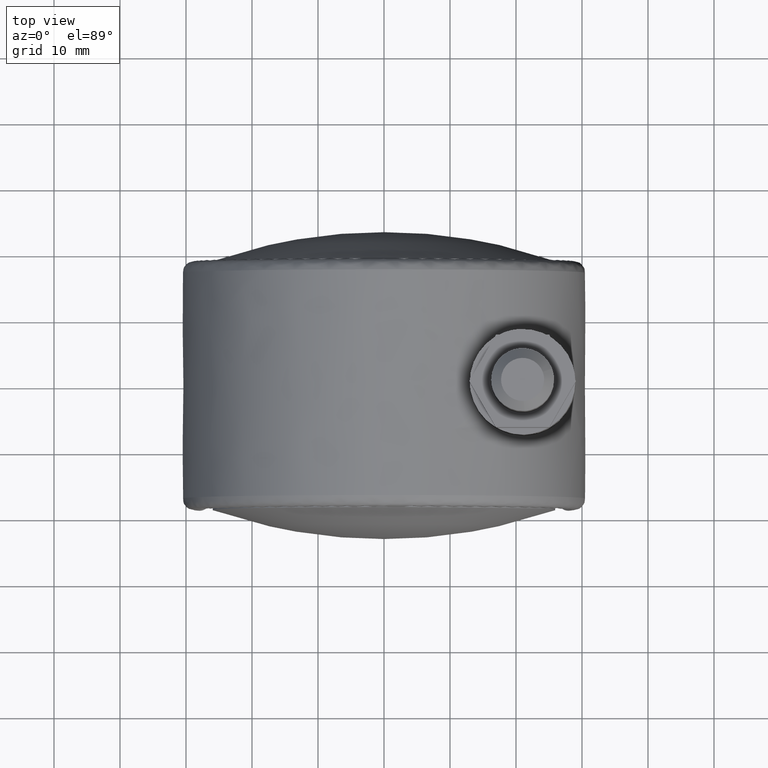
[diagram: clean part render]
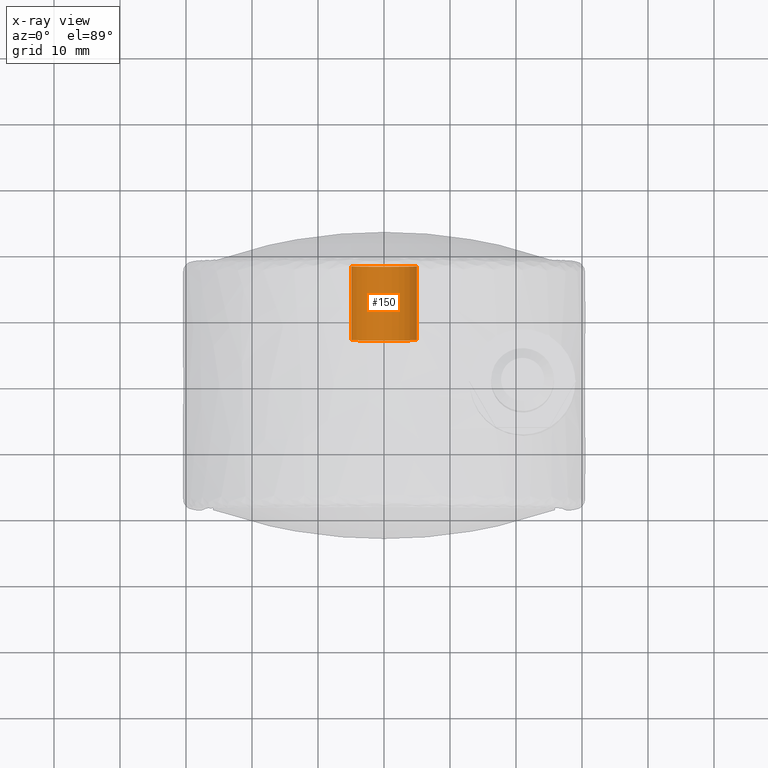
[diagram: x-ray — body ghosted, one internal face saturated and labeled with its STEP entity id]
A machine part, top view, then the same camera in x-ray: the body is ghosted and one INTERNAL B-rep face — a face not visible from any outside direction — is saturated and labeled: STEP entity #150.
In plain terms, the highlighted face is a freeform B-spline surface patch.
Its self-contained STEP definition (entity closure, byte-faithful):
#44=CARTESIAN_POINT('',(4.956289262811225,-18.360452718385545,0.663854404972944));
#45=CARTESIAN_POINT('',(4.960680795249676,-18.360452718385545,0.626908907258677));
#46=CARTESIAN_POINT('',(4.981938077243028,-18.360452718385545,0.448073643189888));
#47=CARTESIAN_POINT('',(4.990673992109334,-18.360452718385549,0.305242697674285));
#48=CARTESIAN_POINT('',(5.295916689783620,-18.360452718385545,-4.685431294435048));
#49=CARTESIAN_POINT('',(0.305242697674285,-18.360452718385549,-4.990673992109334));
#50=CARTESIAN_POINT('',(-4.685431294435048,-18.360452718385545,-5.295916689783620));
#51=CARTESIAN_POINT('',(-4.992869270455739,-18.360452718385545,-0.269350213980748));
#52=CARTESIAN_POINT('',(-4.995051508237991,-18.360452718385559,-0.233670941626498));
#53=CARTESIAN_POINT('',(4.956289262811225,-6.613488682040361,0.663854404972944));
#54=CARTESIAN_POINT('',(4.960680795249676,-6.613488682040362,0.626908907258677));
#55=CARTESIAN_POINT('',(4.981938077243028,-6.613488682040360,0.448073643189888));
#56=CARTESIAN_POINT('',(4.990673992109334,-6.613488682040360,0.305242697674285));
#57=CARTESIAN_POINT('',(5.295916689783620,-6.613488682040360,-4.685431294435048));
#58=CARTESIAN_POINT('',(0.305242697674285,-6.613488682040360,-4.990673992109334));
#59=CARTESIAN_POINT('',(-4.685431294435048,-6.613488682040360,-5.295916689783620));
#60=CARTESIAN_POINT('',(-4.992869270455739,-6.613488682040359,-0.269350213980748));
#61=CARTESIAN_POINT('',(-4.995051508237991,-6.613488682040364,-0.233670941626498));
#69=(BOUNDED_SURFACE()B_SPLINE_SURFACE(2,1,((#44,#53),(#45,#54),(#46,#55),(#47,#56),(#48,#57),(#49,#58),(#50,#59),(#51,#60),(#52,#61)),.UNSPECIFIED.,.F.,.F.,.U.)B_SPLINE_SURFACE_WITH_KNOTS((3,1,2,2,1,3),(2,2),(0.0,0.084499617965476,0.415870467863952,8.700141715325852,16.984412962787751,17.068923197378911),(0.0,11.746964036345190),.UNSPECIFIED.)GEOMETRIC_REPRESENTATION_ITEM()RATIONAL_B_SPLINE_SURFACE(((0.972008777530989,0.972008777530989),(0.974757289163058,0.974757289163058),(0.988284271247462,0.988284271247462),(1.0,1.0),(0.707106781186548,0.707106781186548),(1.0,1.0),(0.707106781186548,0.707106781186548),(1.002987887997954,1.002987887997954),(1.005975775995907,1.005975775995907)))REPRESENTATION_ITEM('')SURFACE());
#70=CARTESIAN_POINT('',(4.965047631813540,-18.080929481351749,0.590171173324097));
#71=VERTEX_POINT('',#70);
#72=CARTESIAN_POINT('',(0.0,-18.080929481351749,-5.0));
#73=VERTEX_POINT('',#72);
#74=CARTESIAN_POINT('',(4.965047631813540,-18.080929481351742,0.590171173324097));
#75=CARTESIAN_POINT('',(5.0,-18.080929481351745,0.296120598300281));
#76=CARTESIAN_POINT('',(5.0,-18.080929481351749,0.0));
#77=CARTESIAN_POINT('',(5.000000000000001,-18.080929481351752,-5.000000000000001));
#78=CARTESIAN_POINT('',(0.0,-18.080929481351749,-5.0));
#86=(BOUNDED_CURVE()B_SPLINE_CURVE(2,(#74,#75,#76,#77,#78),.UNSPECIFIED.,.F.,.U.)B_SPLINE_CURVE_WITH_KNOTS((3,2,3),(0.229562473512900,0.250000000000000,0.500000000000000),.UNSPECIFIED.)CURVE()GEOMETRIC_REPRESENTATION_ITEM()RATIONAL_B_SPLINE_CURVE((0.956026754182508,0.976055948330433,1.0,0.707106781186548,1.0))REPRESENTATION_ITEM(''));
#87=EDGE_CURVE('',#71,#73,#86,.T.);
#88=ORIENTED_EDGE('',*,*,#87,.F.);
#89=CARTESIAN_POINT('',(4.965047631813540,-6.900000000000000,0.590171173324098));
#90=VERTEX_POINT('',#89);
#91=CARTESIAN_POINT('',(4.965047631813540,-18.080929481351749,0.590171173324097));
#92=CARTESIAN_POINT('',(4.965047631813540,-6.900000000000000,0.590171173324098));
#93=QUASI_UNIFORM_CURVE('',1,(#91,#92),.UNSPECIFIED.,.F.,.U.);
#94=EDGE_CURVE('',#71,#90,#93,.T.);
#95=ORIENTED_EDGE('',*,*,#94,.T.);
#96=CARTESIAN_POINT('',(0.0,-6.900000000000000,-5.0));
#97=VERTEX_POINT('',#96);
#98=CARTESIAN_POINT('',(4.965047631813540,-6.900000000000000,0.590171173324098));
#99=CARTESIAN_POINT('',(5.000000000000001,-6.900000000000000,0.296120598300282));
#100=CARTESIAN_POINT('',(5.0,-6.900000000000000,0.0));
#101=CARTESIAN_POINT('',(5.000000000000001,-6.900000000000000,-5.000000000000001));
#102=CARTESIAN_POINT('',(0.0,-6.900000000000000,-5.0));
#110=(BOUNDED_CURVE()B_SPLINE_CURVE(2,(#98,#99,#100,#101,#102),.UNSPECIFIED.,.F.,.U.)B_SPLINE_CURVE_WITH_KNOTS((3,2,3),(0.229562473512900,0.250000000000000,0.500000000000000),.UNSPECIFIED.)CURVE()GEOMETRIC_REPRESENTATION_ITEM()RATIONAL_B_SPLINE_CURVE((0.956026754182508,0.976055948330433,1.0,0.707106781186548,1.0))REPRESENTATION_ITEM(''));
#111=EDGE_CURVE('',#90,#97,#110,.T.);
#112=ORIENTED_EDGE('',*,*,#111,.T.);
#113=CARTESIAN_POINT('',(-4.990674538658999,-6.900000000000000,-0.305233761403670));
#114=VERTEX_POINT('',#113);
#115=CARTESIAN_POINT('',(0.0,-6.900000000000000,-5.0));
#116=CARTESIAN_POINT('',(-4.703538772385869,-6.900000000000000,-5.0));
#117=CARTESIAN_POINT('',(-4.990674538658999,-6.900000000000000,-0.305233761403670));
#125=(BOUNDED_CURVE()B_SPLINE_CURVE(2,(#115,#116,#117),.UNSPECIFIED.,.F.,.U.)B_SPLINE_CURVE_WITH_KNOTS((3,3),(0.500000000000000,0.739333271203276),.UNSPECIFIED.)CURVE()GEOMETRIC_REPRESENTATION_ITEM()RATIONAL_B_SPLINE_CURVE((1.0,0.719603631312478,0.976072703836991))REPRESENTATION_ITEM(''));
#126=EDGE_CURVE('',#97,#114,#125,.T.);
#127=ORIENTED_EDGE('',*,*,#126,.T.);
#128=CARTESIAN_POINT('',(-4.990674545308455,-18.080929481351632,-0.305233652679585));
#129=VERTEX_POINT('',#128);
#130=CARTESIAN_POINT('',(-4.990674545308455,-18.080929481351632,-0.305233652679585));
#131=CARTESIAN_POINT('',(-4.990674538658999,-6.900000000000000,-0.305233761403670));
#132=QUASI_UNIFORM_CURVE('',1,(#130,#131),.UNSPECIFIED.,.F.,.U.);
#133=EDGE_CURVE('',#129,#114,#132,.T.);
#134=ORIENTED_EDGE('',*,*,#133,.F.);
#135=CARTESIAN_POINT('',(0.0,-18.080929481351749,-5.0));
#136=CARTESIAN_POINT('',(-4.703538875046035,-18.080929481351752,-5.0));
#137=CARTESIAN_POINT('',(-4.990674545308455,-18.080929481351628,-0.305233652679585));
#145=(BOUNDED_CURVE()B_SPLINE_CURVE(2,(#135,#136,#137),.UNSPECIFIED.,.F.,.U.)B_SPLINE_CURVE_WITH_KNOTS((3,3),(0.500000000000000,0.739333274962287),.UNSPECIFIED.)CURVE()GEOMETRIC_REPRESENTATION_ITEM()RATIONAL_B_SPLINE_CURVE((1.0,0.719603626908522,0.976072711893290))REPRESENTATION_ITEM(''));
#146=EDGE_CURVE('',#73,#129,#145,.T.);
#147=ORIENTED_EDGE('',*,*,#146,.F.);
#148=EDGE_LOOP('',(#88,#95,#112,#127,#134,#147));
#149=FACE_OUTER_BOUND('',#148,.T.);
#150=ADVANCED_FACE('',(#149),#69,.F.);